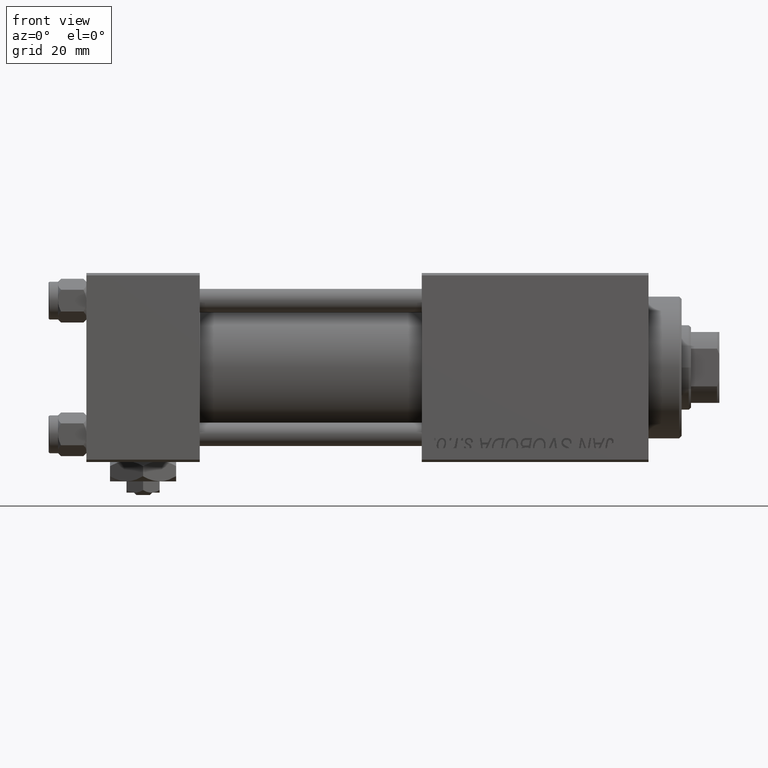
[diagram: clean part render]
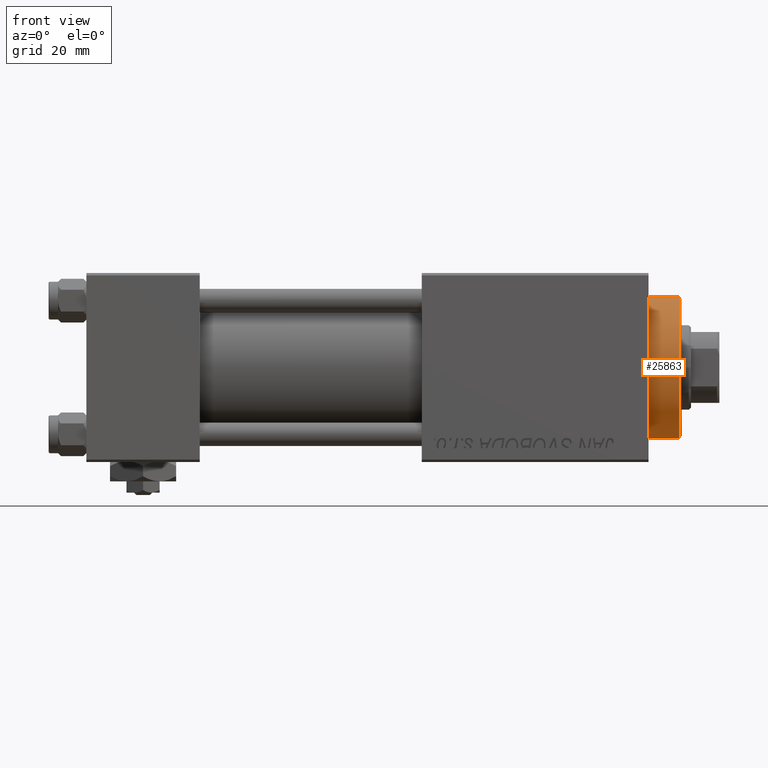
[diagram: same view with one face highlighted and labeled with its STEP entity id]
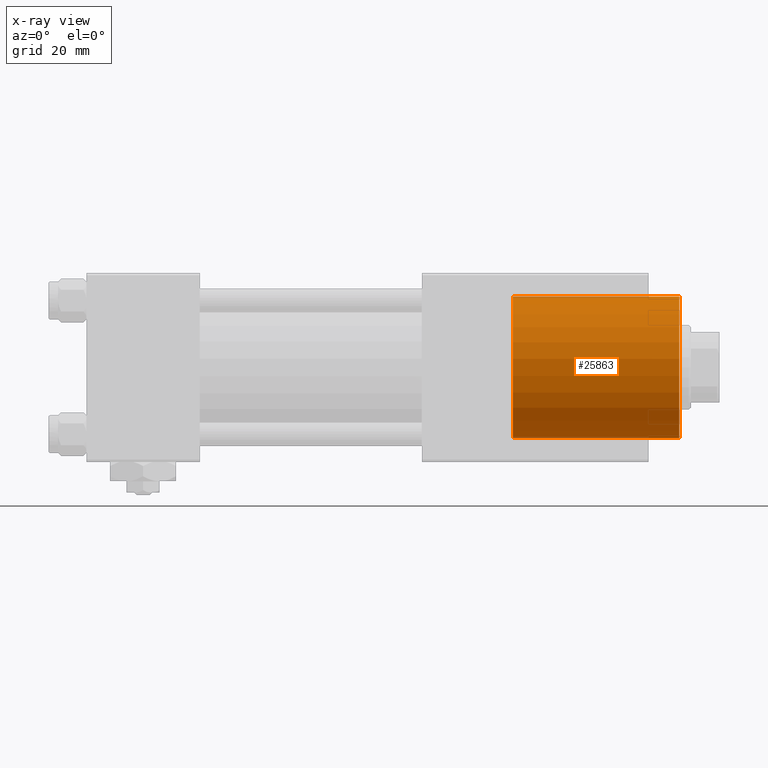
[diagram: x-ray of the same camera — body ghosted, the highlighted face saturated]
A machine part, front view. The second image highlights one B-rep face of the part: STEP entity #25863.
The next image is the same camera in x-ray: the body ghosted, the highlighted face saturated — about 2% of this face is hidden behind the body in this view.
In plain terms, the highlighted cylindrical surface (partial cylindrical patch) has radius 15 mm, axis along (-1, -0, -0).
Its self-contained STEP definition (entity closure, byte-faithful):
#1357 = AXIS2_PLACEMENT_3D ( 'NONE', #3379, #18873, #34899 ) ;
#2487 = FACE_OUTER_BOUND ( 'NONE', #25689, .T. ) ;
#2754 = CARTESIAN_POINT ( 'NONE',  ( 0.000000000000000000, 0.000000000000000000, 35.19999999999999574 ) ) ;
#3379 = CARTESIAN_POINT ( 'NONE',  ( 0.000000000000000000, 0.000000000000000000, 0.000000000000000000 ) ) ;
#5642 = DIRECTION ( 'NONE',  ( 1.000000000000000000, 0.000000000000000000, 0.000000000000000000 ) ) ;
#8599 = DIRECTION ( 'NONE',  ( -0.000000000000000000, -0.000000000000000000, -1.000000000000000000 ) ) ;
#9595 = DIRECTION ( 'NONE',  ( 0.000000000000000000, 0.000000000000000000, -1.000000000000000000 ) ) ;
#10671 = AXIS2_PLACEMENT_3D ( 'NONE', #2754, #9595, #5642 ) ;
#15219 = VECTOR ( 'NONE', #41824, 1000.000000000000000 ) ;
#16018 = VERTEX_POINT ( 'NONE', #25711 ) ;
#16995 = CARTESIAN_POINT ( 'NONE',  ( -15.00000000000000000, 0.000000000000000000, 28.69999999999999929 ) ) ;
#18873 = DIRECTION ( 'NONE',  ( 0.000000000000000000, 0.000000000000000000, 1.000000000000000000 ) ) ;
#20877 = EDGE_CURVE ( 'NONE', #16018, #21914, #41624, .T. ) ;
#20937 = EDGE_CURVE ( 'NONE', #43933, #16018, #28564, .T. ) ;
#21914 = VERTEX_POINT ( 'NONE', #27151 ) ;
#22453 = CARTESIAN_POINT ( 'NONE',  ( 0.000000000000000000, 0.000000000000000000, 28.69999999999999929 ) ) ;
#25689 = EDGE_LOOP ( 'NONE', ( #27794, #41466, #32667, #26885 ) ) ;
#25711 = CARTESIAN_POINT ( 'NONE',  ( -15.00000000000000000, 0.000000000000000000, 0.000000000000000000 ) ) ;
#25863 = ADVANCED_FACE ( 'NONE', ( #2487 ), #49516, .T. ) ;
#26520 = EDGE_CURVE ( 'NONE', #30695, #43933, #29970, .T. ) ;
#26885 = ORIENTED_EDGE ( 'NONE', *, *, #20877, .T. ) ;
#27151 = CARTESIAN_POINT ( 'NONE',  ( 15.00000000000000000, 1.836970198721029589E-15, 0.000000000000000000 ) ) ;
#27794 = ORIENTED_EDGE ( 'NONE', *, *, #39925, .F. ) ;
#28564 = LINE ( 'NONE', #16995, #30731 ) ;
#29970 = CIRCLE ( 'NONE', #10671, 15.00000000000000000 ) ;
#30078 = DIRECTION ( 'NONE',  ( -0.000000000000000000, -0.000000000000000000, -1.000000000000000000 ) ) ;
#30695 = VERTEX_POINT ( 'NONE', #46666 ) ;
#30731 = VECTOR ( 'NONE', #8599, 1000.000000000000000 ) ;
#32667 = ORIENTED_EDGE ( 'NONE', *, *, #20937, .T. ) ;
#33759 = DIRECTION ( 'NONE',  ( -1.000000000000000000, 0.000000000000000000, 0.000000000000000000 ) ) ;
#34171 = AXIS2_PLACEMENT_3D ( 'NONE', #22453, #30078, #33759 ) ;
#34899 = DIRECTION ( 'NONE',  ( 1.000000000000000000, 0.000000000000000000, 0.000000000000000000 ) ) ;
#38921 = LINE ( 'NONE', #45757, #15219 ) ;
#39925 = EDGE_CURVE ( 'NONE', #30695, #21914, #38921, .T. ) ;
#41466 = ORIENTED_EDGE ( 'NONE', *, *, #26520, .T. ) ;
#41624 = CIRCLE ( 'NONE', #1357, 15.00000000000000000 ) ;
#41824 = DIRECTION ( 'NONE',  ( -0.000000000000000000, -0.000000000000000000, -1.000000000000000000 ) ) ;
#43933 = VERTEX_POINT ( 'NONE', #48177 ) ;
#45757 = CARTESIAN_POINT ( 'NONE',  ( 15.00000000000000000, 1.836970198721029589E-15, 28.69999999999999929 ) ) ;
#46666 = CARTESIAN_POINT ( 'NONE',  ( 15.00000000000000000, 1.836970198721029589E-15, 35.19999999999999574 ) ) ;
#48177 = CARTESIAN_POINT ( 'NONE',  ( -15.00000000000000000, 0.000000000000000000, 35.19999999999999574 ) ) ;
#49516 = CYLINDRICAL_SURFACE ( 'NONE', #34171, 15.00000000000000000 ) ;